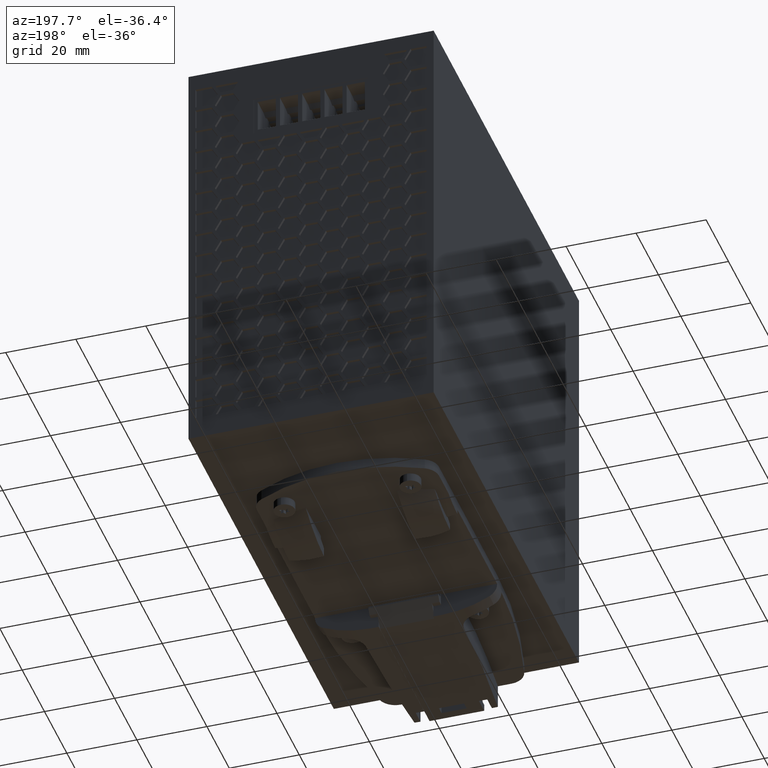
[diagram: clean part render]
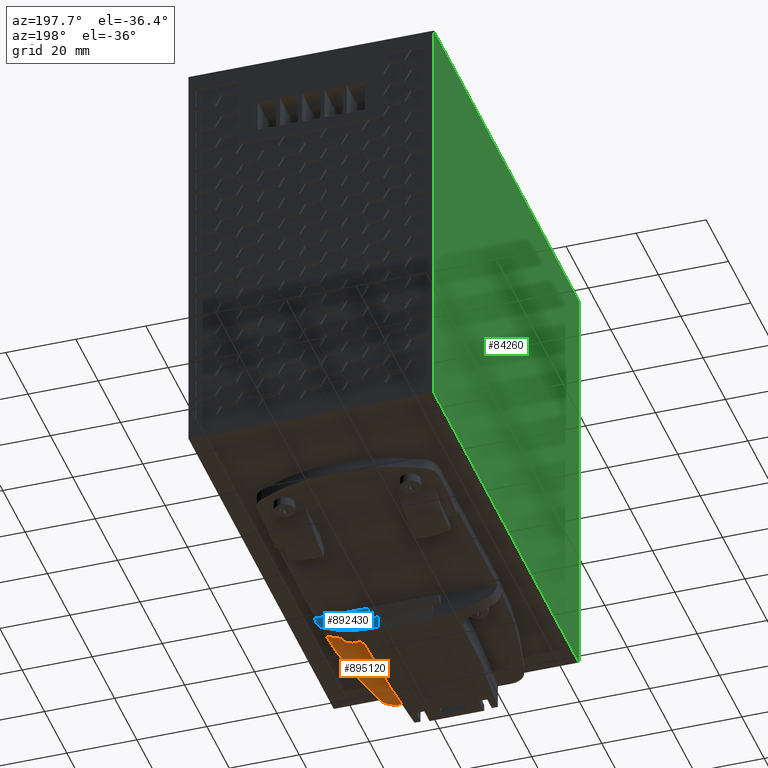
[diagram: same view with three faces highlighted in distinct colors, each labeled with its STEP entity id]
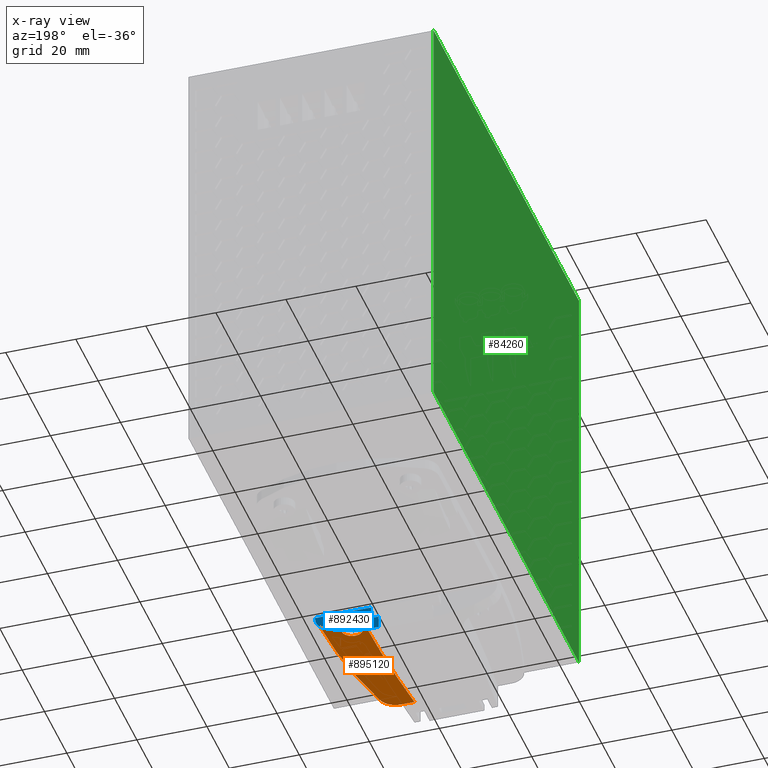
[diagram: x-ray of the same camera — body ghosted, the three highlighted faces saturated]
A machine part, auxiliary view with three faces highlighted in distinct colors.
The next image is the same camera in x-ray (body ghosted, the three faces saturated) — at least one of them is partly hidden behind the body in this view.
Their STEP definitions:

[orange] entity #895120 — the highlighted planar face has unit normal (-0, 0, -1).
#210860=CARTESIAN_POINT('',(40.775,-2.90000000000834,41.3012793438114));
#210870=DIRECTION('',(-0.,-1.,-0.));
#210880=DIRECTION('',(-1.,0.,0.));
#210890=AXIS2_PLACEMENT_3D('',#210860,#210870,#210880);
#210900=PLANE('',#210890);
#891690=CARTESIAN_POINT('',(60.9499921850577,-2.90000000000834,
88.0968498908015));
#891700=VERTEX_POINT('',#891690);
#891730=CARTESIAN_POINT('',(-99.,-2.90000000000834,84.0968498908014));
#891740=DIRECTION('',(0.,-1.,0.));
#891750=DIRECTION('',(0.,0.,1.));
#891760=AXIS2_PLACEMENT_3D('',#891730,#891740,#891750);
#891770=CIRCLE('',#891760,160.);
#891780=CARTESIAN_POINT('',(55.6217060011348,-2.90000000000834,
125.232333761769));
#891790=VERTEX_POINT('',#891780);
#891800=EDGE_CURVE('',#891700,#891790,#891770,.T.);
#893700=CARTESIAN_POINT('',(46.9167256523205,-2.90000000000834,
128.946849890801));
#893710=VERTEX_POINT('',#893700);
#893740=CARTESIAN_POINT('',(-352.5,-2.90000000000834,88.0992150856014));
#893750=DIRECTION('',(0.,-1.,0.));
#893760=DIRECTION('',(0.,0.,-1.));
#893770=AXIS2_PLACEMENT_3D('',#893740,#893750,#893760);
#893780=CIRCLE('',#893770,401.5);
#893790=CARTESIAN_POINT('',(48.9804885015026,-2.90000000000834,
92.0574157620202));
#893800=VERTEX_POINT('',#893790);
#893810=EDGE_CURVE('',#893800,#893710,#893780,.T.);
#894040=CARTESIAN_POINT('',(-1.,-2.90000000000834,128.946849890801));
#894050=DIRECTION('',(1.,0.,0.));
#894060=VECTOR('',#894050,1.);
#894070=LINE('',#894040,#894060);
#894080=CARTESIAN_POINT('',(50.7897776885993,-2.90000000000834,
128.946849890801));
#894090=VERTEX_POINT('',#894080);
#894100=EDGE_CURVE('',#893710,#894090,#894070,.T.);
#894700=CARTESIAN_POINT('',(53.,-2.90000000000834,92.0968498908015));
#894710=DIRECTION('',(0.,-1.,0.));
#894720=DIRECTION('',(0.,0.,1.));
#894730=AXIS2_PLACEMENT_3D('',#894700,#894710,#894720);
#894740=CIRCLE('',#894730,3.);
#894750=CARTESIAN_POINT('',(53.,-2.90000000000834,95.0968498908015));
#894760=VERTEX_POINT('',#894750);
#894770=CARTESIAN_POINT('',(53.,-2.90000000000834,89.0968498908015));
#894780=VERTEX_POINT('',#894770);
#894790=EDGE_CURVE('',#894760,#894780,#894740,.T.);
#894800=ORIENTED_EDGE('',*,*,#894790,.F.);
#894810=EDGE_CURVE('',#894780,#894760,#894740,.T.);
#894820=ORIENTED_EDGE('',*,*,#894810,.F.);
#894830=EDGE_LOOP('',(#894820,#894800));
#894840=FACE_BOUND('',#894830,.T.);
#894850=CARTESIAN_POINT('',(-1.,-2.90000000000834,88.0968498908014));
#894860=DIRECTION('',(1.,0.,0.));
#894870=VECTOR('',#894860,1.);
#894880=LINE('',#894850,#894870);
#894890=CARTESIAN_POINT('',(52.9802941154653,-2.90000000000834,
88.0968498908015));
#894900=VERTEX_POINT('',#894890);
#894910=EDGE_CURVE('',#894900,#891700,#894880,.T.);
#894920=ORIENTED_EDGE('',*,*,#894910,.T.);
#894930=CARTESIAN_POINT('',(52.9802941154653,-2.90000000000834,
92.0968498908015));
#894940=DIRECTION('',(0.,-1.,0.));
#894950=DIRECTION('',(-1.,0.,0.));
#894960=AXIS2_PLACEMENT_3D('',#894930,#894940,#894950);
#894970=CIRCLE('',#894960,4.);
#894980=EDGE_CURVE('',#893800,#894900,#894970,.T.);
#894990=ORIENTED_EDGE('',*,*,#894980,.T.);
#895000=ORIENTED_EDGE('',*,*,#893810,.F.);
#895010=ORIENTED_EDGE('',*,*,#894100,.F.);
#895020=CARTESIAN_POINT('',(50.7897776885993,-2.90000000000834,
123.946849890801));
#895030=DIRECTION('',(0.,-1.,0.));
#895040=DIRECTION('',(-1.,0.,0.));
#895050=AXIS2_PLACEMENT_3D('',#895020,#895030,#895040);
#895060=CIRCLE('',#895050,5.);
#895070=EDGE_CURVE('',#891790,#894090,#895060,.T.);
#895080=ORIENTED_EDGE('',*,*,#895070,.T.);
#895090=ORIENTED_EDGE('',*,*,#891800,.T.);
#895100=EDGE_LOOP('',(#895090,#895080,#895010,#895000,#894990,#894920));
#895110=FACE_OUTER_BOUND('',#895100,.T.);
#895120=ADVANCED_FACE('',(#894840,#895110),#210900,.T.);

[blue] entity #892430 — the highlighted planar face has unit normal (0, 1, 0).
#100370=CARTESIAN_POINT('',(42.8,-8.29955848486361,84.0968498908014));
#100380=VERTEX_POINT('',#100370);
#100630=CARTESIAN_POINT('',(42.8,-9.90000000000832,84.0968498908014));
#100640=VERTEX_POINT('',#100630);
#100670=CARTESIAN_POINT('',(42.8,0.,84.0968498908014));
#100680=DIRECTION('',(0.,-1.,0.));
#100690=VECTOR('',#100680,1.);
#100700=LINE('',#100670,#100690);
#100710=EDGE_CURVE('',#100380,#100640,#100700,.T.);
#102560=CARTESIAN_POINT('',(45.0743344320918,-5.63141203590117,
153.685542635742));
#102570=CARTESIAN_POINT('',(46.3403170509005,-5.81022095574977,
151.064490335249));
#102580=CARTESIAN_POINT('',(47.5349063773054,-5.88919030929573,
148.408997652081));
#102590=CARTESIAN_POINT('',(49.7812655642816,-5.90871513972316,
143.025761285719));
#102600=CARTESIAN_POINT('',(50.8311236396666,-5.84918758200406,
140.30319972954));
#102610=CARTESIAN_POINT('',(52.7797530273598,-5.64069773896304,
134.805789424298));
#102620=CARTESIAN_POINT('',(53.6788313705026,-5.49180964051441,
132.031037372716));
#102630=CARTESIAN_POINT('',(55.3230454030464,-5.1471949978407,
126.439169313841));
#102640=CARTESIAN_POINT('',(56.0684891846169,-4.95154773439343,
123.622319764749));
#102650=CARTESIAN_POINT('',(57.4045059206593,-4.55089688054524,
117.951032081244));
#102660=CARTESIAN_POINT('',(57.9952523408382,-4.34593656536102,
115.096834746713));
#102670=CARTESIAN_POINT('',(59.0200188429178,-3.95990376235308,
109.358565538732));
#102680=CARTESIAN_POINT('',(59.4542631269413,-3.77886646460761,
106.474625861697));
#102690=CARTESIAN_POINT('',(60.1644613531749,-3.46832319127134,
100.685031854141));
#102700=CARTESIAN_POINT('',(60.4406359906012,-3.33883681320644,
97.7793020005343));
#102710=CARTESIAN_POINT('',(60.8335534900347,-3.15100158887521,
91.9548698312182));
#102720=CARTESIAN_POINT('',(60.9504156566177,-3.09267606918677,
89.0358743320794));
#102730=CARTESIAN_POINT('',(61.0241073365893,-3.05613011638496,
83.1957253305814));
#102740=CARTESIAN_POINT('',(60.9809610615792,-3.07791471047654,
80.2741659342253));
#102750=CARTESIAN_POINT('',(60.7350049894961,-3.19825714557351,
74.4398805160199));
#102760=CARTESIAN_POINT('',(60.5321174339837,-3.29679874051204,
71.5267932554081));
#102770=CARTESIAN_POINT('',(59.9678087948162,-3.55566430290948,
65.7186108492733));
#102780=CARTESIAN_POINT('',(59.6061944872049,-3.71597292475955,
62.8233378908338));
#102790=CARTESIAN_POINT('',(58.7259781473381,-4.07407498123776,
57.059322008785));
#102800=CARTESIAN_POINT('',(58.2071672462729,-4.27183537051772,
54.1906217573492));
#102810=CARTESIAN_POINT('',(57.0138392134201,-4.6741059370581,
48.485132760337));
#102820=CARTESIAN_POINT('',(56.3390288249114,-4.87857802340562,
45.648573309341));
#102830=CARTESIAN_POINT('',(54.8351489387498,-5.25861088341863,
40.0143574167312));
#102840=CARTESIAN_POINT('',(54.0058024706178,-5.43410966095024,
37.2169837922763));
#102850=CARTESIAN_POINT('',(52.1949996124809,-5.7159551829002,
31.6697573241212));
#102860=CARTESIAN_POINT('',(51.2132705094097,-5.82223272368197,
28.9200952882202));
#102870=CARTESIAN_POINT('',(49.1004092697987,-5.91974325527886,
23.4765902000194));
#102880=CARTESIAN_POINT('',(47.9708954697022,-5.91093983943139,
20.7875112815937));
#102890=CARTESIAN_POINT('',(46.7676798052259,-5.81694613810834,
18.1288006229843));
#102900=CARTESIAN_POINT('',(45.0034699793578,-8.21744600717199,
153.832258265248));
#102910=CARTESIAN_POINT('',(46.2950925983412,-8.31679866533718,
151.164926902598));
#102920=CARTESIAN_POINT('',(47.516235746546,-8.32004045281116,
148.453352024536));
#102930=CARTESIAN_POINT('',(49.7936517843138,-8.19501985077911,
142.996456210143));
#102940=CARTESIAN_POINT('',(50.8517896871656,-8.06740390652162,
140.249203092171));
#102950=CARTESIAN_POINT('',(52.8118464113804,-7.73189248254208,
134.710940442499));
#102960=CARTESIAN_POINT('',(53.7124372901638,-7.52423516171174,
131.924496512315));
#102970=CARTESIAN_POINT('',(55.357117790352,-7.07156634977002,
126.315553081318));
#102980=CARTESIAN_POINT('',(56.1005360882836,-6.82683569496765,
123.496542808153));
#102990=CARTESIAN_POINT('',(57.4316808442246,-6.33767997892288,
117.825430271366));
#103000=CARTESIAN_POINT('',(58.0189840520743,-6.09348604870767,
114.976014555934));
#103010=CARTESIAN_POINT('',(59.0372091822577,-5.63895986641122,
109.250260084257));
#103020=CARTESIAN_POINT('',(59.467990236674,-5.42881034623395,
106.376024483593));
#103030=CARTESIAN_POINT('',(60.1723590084719,-5.07037643652679,
100.607369151806));
#103040=CARTESIAN_POINT('',(60.4459500824798,-4.92221731385293,
97.7145798988861));
#103050=CARTESIAN_POINT('',(60.8352160214198,-4.70770099005859,
91.9161903156732));
#103060=CARTESIAN_POINT('',(60.9508998105226,-4.64143032614018,
89.0118765454444));
#103070=CARTESIAN_POINT('',(61.0238740414092,-4.59986366251831,
83.1998760511639));
#103080=CARTESIAN_POINT('',(60.9811686169462,-4.62458491930727,
80.2933214368585));
#103090=CARTESIAN_POINT('',(60.7375672391347,-4.76166363824074,
74.4864106185842));
#103100=CARTESIAN_POINT('',(60.5366612786015,-4.8739644741894,
71.5872458188893));
#103110=CARTESIAN_POINT('',(59.9773145379204,-5.17101899970211,
65.8027431413215));
#103120=CARTESIAN_POINT('',(59.6188454366923,-5.35567144490322,
62.9188618036718));
#103130=CARTESIAN_POINT('',(58.7450767100592,-5.77285238667653,
57.1716860467342));
#103140=CARTESIAN_POINT('',(58.2298580145502,-6.00521798016283,
54.3102632398862));
#103150=CARTESIAN_POINT('',(57.0425388833359,-6.48685946265351,
48.6111730271082));
#103160=CARTESIAN_POINT('',(56.3706222600035,-6.73593269849817,
45.7759338830616));
#103170=CARTESIAN_POINT('',(54.8692943428021,-7.21515102740202,
40.1332684804084));
#103180=CARTESIAN_POINT('',(54.0403866612251,-7.44503656069287,
37.328951513123));
#103190=CARTESIAN_POINT('',(52.2240477655855,-7.84538627775047,
31.7527176808066));
#103200=CARTESIAN_POINT('',(51.2376373809503,-8.01558489572414,
28.9848277466312));
#103210=CARTESIAN_POINT('',(49.1040443126305,-8.25003036723689,
23.4840029168666));
#103220=CARTESIAN_POINT('',(47.9554076219244,-8.31387319746373,
20.7496729560584));
#103230=CARTESIAN_POINT('',(46.7339101873522,-8.29635511489177,
18.0541808805486));
#103240=CARTESIAN_POINT('',(43.2035873896171,-9.92393817897704,
153.082307548277));
#103250=CARTESIAN_POINT('',(44.5842976891,-10.0113789824054,
150.460027664721));
#103260=CARTESIAN_POINT('',(45.8922298643975,-9.9991039045302,
147.779130671091));
#103270=CARTESIAN_POINT('',(48.3222968578352,-9.8375195271602,
142.391322774242));
#103280=CARTESIAN_POINT('',(49.4482761612797,-9.68913103043523,
139.679154530877));
#103290=CARTESIAN_POINT('',(51.5322263878413,-9.31021948625148,
134.205463946573));
#103300=CARTESIAN_POINT('',(52.4877314620516,-9.08004724593209,
131.451511255457));
#103310=CARTESIAN_POINT('',(54.2314358591975,-8.58275127366069,
125.903580340888));
#103320=CARTESIAN_POINT('',(55.0183178446912,-8.31604465662143,
123.115181483453));
#103330=CARTESIAN_POINT('',(56.4265397471949,-7.78515749752577,
117.502280555571));
#103340=CARTESIAN_POINT('',(57.047022247468,-7.52134237852186,
114.68222229918));
#103350=CARTESIAN_POINT('',(58.1224665499839,-7.03132719886205,
109.012515315735));
#103360=CARTESIAN_POINT('',(58.576942407001,-6.8054459697248,
106.166870991924));
#103370=CARTESIAN_POINT('',(59.3200599108907,-6.42053635290652,
100.452644244663));
#103380=CARTESIAN_POINT('',(59.6084163044067,-6.26176500813947,
97.588053720901));
#103390=CARTESIAN_POINT('',(60.0188178164735,-6.03190163895083,
91.843028204985));
#103400=CARTESIAN_POINT('',(60.140677832227,-5.96099277594019,
88.9667670567223));
#103410=CARTESIAN_POINT('',(60.2175928723871,-5.91649021335756,
83.2076675062341));
#103420=CARTESIAN_POINT('',(60.1726121351651,-5.94293433012134,
80.3291445361685));
#103430=CARTESIAN_POINT('',(59.9158294140849,-6.08974056153626,
74.5753068989855));
#103440=CARTESIAN_POINT('',(59.704146088114,-6.20998056252491,
71.7042520341726));
#103450=CARTESIAN_POINT('',(59.1142438693532,-6.52860068400947,
65.9736190943138));
#103460=CARTESIAN_POINT('',(58.7362485878485,-6.72675919960653,
63.1181118279072));
#103470=CARTESIAN_POINT('',(57.8139084457517,-7.1755843951522,
57.4261724654756));
#103480=CARTESIAN_POINT('',(57.2699663368529,-7.42595103255375,
54.5936992779097));
#103490=CARTESIAN_POINT('',(56.0149143919223,-7.94683886372339,
48.9517653764718));
#103500=CARTESIAN_POINT('',(55.3043669038807,-8.21702424773899,
46.1465116712061));
#103510=CARTESIAN_POINT('',(53.7143584692015,-8.74002696797915,
40.5635261374699));
#103520=CARTESIAN_POINT('',(52.8359249536383,-8.99244950111748,
37.790781255969));
#103530=CARTESIAN_POINT('',(50.9074505707401,-9.43737474614217,
32.2774307920853));
#103540=CARTESIAN_POINT('',(49.859302760305,-9.62948010757479,
29.5433604023104));
#103550=CARTESIAN_POINT('',(47.5866814686524,-9.90439400033832,
24.1095128610095));
#103560=CARTESIAN_POINT('',(46.3590396032154,-9.98668044829528,
21.4052352639135));
#103570=CARTESIAN_POINT('',(45.0556693252184,-9.98457444947311,
18.7524648157904));
#103580=CARTESIAN_POINT('',(40.8990108514879,-9.59009081065391,
151.945825317119));
#103590=CARTESIAN_POINT('',(42.3181022493961,-9.79566433826876,
149.399520424151));
#103600=CARTESIAN_POINT('',(43.666822041778,-9.88752431808412,
146.801884005279));
#103610=CARTESIAN_POINT('',(46.1946396568927,-9.91005888370147,
141.551850460705));
#103620=CARTESIAN_POINT('',(47.3752156514401,-9.84139037513014,
138.898488563973));
#103630=CARTESIAN_POINT('',(49.5677895136438,-9.60078502990056,
133.537619128403));
#103640=CARTESIAN_POINT('',(50.5789589249142,-9.42903498114135,
130.833009803579));
#103650=CARTESIAN_POINT('',(52.4289214312142,-9.03135503883061,
125.380284932143));
#103660=CARTESIAN_POINT('',(53.2673537943248,-8.80565696199728,
122.634481577113));
#103670=CARTESIAN_POINT('',(54.7705348152967,-8.34331762893006,
117.104379388803));
#103680=CARTESIAN_POINT('',(55.4349697550481,-8.10687837483274,
114.322193001951));
#103690=CARTESIAN_POINT('',(56.5879794373211,-7.66139897261212,
108.726665353638));
#103700=CARTESIAN_POINT('',(57.0763630638226,-7.45256853154408,
105.915658849323));
#103710=CARTESIAN_POINT('',(57.8754711085597,-7.09418880788098,
100.269850614199));
#103720=CARTESIAN_POINT('',(58.1860528757684,-6.94483486443242,
97.4378474529179));
#103730=CARTESIAN_POINT('',(58.6281794857985,-6.72805561662587,
91.757813026171));
#103740=CARTESIAN_POINT('',(58.7595923400307,-6.66078510984185,
88.9130779430375));
#103750=CARTESIAN_POINT('',(58.8425152566447,-6.6186066434375,
83.2175743212216));
#103760=CARTESIAN_POINT('',(58.7939974656244,-6.6437318569439,
80.3703838184596));
#103770=CARTESIAN_POINT('',(58.517233557633,-6.78262029216294,
74.680653657283));
#103780=CARTESIAN_POINT('',(58.2890771878211,-6.89627779343169,
71.8415839807941));
#103790=CARTESIAN_POINT('',(57.6541089754268,-7.19502575345586,
66.1775268474958));
#103800=CARTESIAN_POINT('',(57.2474251133938,-7.37993884142022,
63.3555826083705));
#103810=CARTESIAN_POINT('',(56.2570382263303,-7.79319340157857,
57.7348526929263));
#103820=CARTESIAN_POINT('',(55.6735243993099,-8.02132200948129,
54.938594997836));
#103830=CARTESIAN_POINT('',(54.3308769337504,-8.48553340240302,
49.3751074683188));
#103840=CARTESIAN_POINT('',(53.5718854762722,-8.72141196481627,
46.6100835934925));
#103850=CARTESIAN_POINT('',(51.8798335441993,-9.15995990113671,
41.1161157277117));
#103860=CARTESIAN_POINT('',(50.9470552223936,-9.36241142351404,
38.3893596451924));
#103870=CARTESIAN_POINT('',(48.9096160956997,-9.68766343720392,
32.9800547577373));
#103880=CARTESIAN_POINT('',(47.8055663562958,-9.81025657927899,
30.3000777646897));
#103890=CARTESIAN_POINT('',(45.4280919407253,-9.92279265960315,
24.9915315505868));
#103900=CARTESIAN_POINT('',(44.1532776084402,-9.91227320726757,
22.3618866909415));
#103910=CARTESIAN_POINT('',(42.8040243962637,-9.80416862089295,
19.7780018546798));
#103920=(BOUNDED_SURFACE() B_SPLINE_SURFACE(3,3,((#102560,#102900,
#103240,#103580),(#102570,#102910,#103250,#103590),(#102580,#102920,
#103260,#103600),(#102590,#102930,#103270,#103610),(#102600,#102940,
#103280,#103620),(#102610,#102950,#103290,#103630),(#102620,#102960,
#103300,#103640),(#102630,#102970,#103310,#103650),(#102640,#102980,
#103320,#103660),(#102650,#102990,#103330,#103670),(#102660,#103000,
#103340,#103680),(#102670,#103010,#103350,#103690),(#102680,#103020,
#103360,#103700),(#102690,#103030,#103370,#103710),(#102700,#103040,
#103380,#103720),(#102710,#103050,#103390,#103730),(#102720,#103060,
#103400,#103740),(#102730,#103070,#103410,#103750),(#102740,#103080,
#103420,#103760),(#102750,#103090,#103430,#103770),(#102760,#103100,
#103440,#103780),(#102770,#103110,#103450,#103790),(#102780,#103120,
#103460,#103800),(#102790,#103130,#103470,#103810),(#102800,#103140,
#103480,#103820),(#102810,#103150,#103490,#103830),(#102820,#103160,
#103500,#103840),(#102830,#103170,#103510,#103850),(#102840,#103180,
#103520,#103860),(#102850,#103190,#103530,#103870),(#102860,#103200,
#103540,#103880),(#102870,#103210,#103550,#103890),(#102880,#103220,
#103560,#103900),(#102890,#103230,#103570,#103910)),.UNSPECIFIED.,.F.,
.F.,.F.) B_SPLINE_SURFACE_WITH_KNOTS((4,2,2,2,2,2,2,2,2,2,2,2,2,2,2,2,4)
,(4,4),(0.,8.75651680268565,17.4875641845306,26.2035355343563,
34.9002750200123,43.5847356551744,52.2550551758772,60.9127331774731,
69.5640103292074,78.2140312931541,86.8681432524264,95.5329794214099,
104.210493337567,112.906675508759,121.620952832175,130.350859256562,
139.1044688017),(0.,1.),.UNSPECIFIED.) GEOMETRIC_REPRESENTATION_ITEM() 
RATIONAL_B_SPLINE_SURFACE(((1.,0.773258508527748,0.773258508527748,1.),(
1.,0.783760619791181,0.783760619791181,1.),(1.,0.793626750683958,
0.793626750683958,1.),(1.,0.811955906367221,0.811955906367221,1.),(1.,
0.820479325710964,0.820479325710964,1.),(1.,0.836242696070561,
0.836242696070561,1.),(1.,0.843473355596504,0.843473355596504,1.),(1.,
0.8566610091823,0.8566610091823,1.),(1.,0.862613578111954,
0.862613578111954,1.),(1.,0.873261776843689,0.873261776843689,1.),(1.,
0.877954096316392,0.877954096316392,1.),(1.,0.88608445337847,
0.88608445337847,1.),(1.,0.889520495696341,0.889520495696341,1.),(1.,
0.895137648669848,0.895137648669848,1.),(1.,0.897317361590637,
0.897317361590637,1.),(1.,0.900419272932765,0.900419272932765,1.),(1.,
0.901340332551382,0.901340332551382,1.),(1.,0.901921654226187,
0.901921654226187,1.),(1.,0.901581680778176,0.901581680778176,1.),(1.,
0.899640899644125,0.899640899644125,1.),(1.,0.898040855054247,
0.898040855054247,1.),(1.,0.893582054031871,0.893582054031871,1.),(1.,
0.890724503635574,0.890724503635574,1.),(1.,0.883752125924418,
0.883752125924418,1.),(1.,0.879639149288061,0.879639149288061,1.),(1.,
0.870150009662685,0.870150009662685,1.),(1.,0.864775701425908,
0.864775701425908,1.),(1.,0.852751569781216,0.852751569781216,1.),(1.,
0.846105197453484,0.846105197453484,1.),(1.,0.831518718118881,
0.831518718118881,1.),(1.,0.823585545492992,0.823585545492992,1.),(1.,
0.806436070983443,0.806436070983443,1.),(1.,0.797170412865134,
0.797170412865134,1.),(1.,0.787263913937934,0.787263913937934,1.))) 
REPRESENTATION_ITEM('') SURFACE());
#103930=CARTESIAN_POINT('',(38.7,-3.30000000000832,84.0968498908014));
#103940=DIRECTION('',(0.,0.,-1.));
#103950=DIRECTION('',(0.,1.,0.));
#103960=AXIS2_PLACEMENT_3D('',#103930,#103940,#103950);
#103970=PLANE('',#103960);
#103980=CARTESIAN_POINT('',(60.9999939336886,-3.06813087505524,
84.0968498908014));
#103990=CARTESIAN_POINT('',(60.9999977624699,-3.4330217734481,
84.0968498908014));
#104000=CARTESIAN_POINT('',(60.9493752538129,-3.80039969006405,
84.0968498908014));
#104010=CARTESIAN_POINT('',(60.8502249561405,-4.15246511236609,
84.0968498908014));
#104020=CARTESIAN_POINT('',(60.7514821326585,-4.50308366485261,
84.0968498908014));
#104030=CARTESIAN_POINT('',(60.6034096451931,-4.84330640344105,
84.0968498908014));
#104040=CARTESIAN_POINT('',(60.410931775225,-5.15752604461875,
84.0968498908014));
#104050=CARTESIAN_POINT('',(60.2183862608959,-5.47185611504653,
84.0968498908014));
#104060=CARTESIAN_POINT('',(59.9858469004721,-5.75509648488833,
84.0968498908014));
#104070=CARTESIAN_POINT('',(59.7160727141585,-6.00462087305746,
84.0968498908014));
#104080=CARTESIAN_POINT('',(59.4459151733822,-6.25449984032511,
84.0968498908014));
#104090=CARTESIAN_POINT('',(59.1405048183837,-6.46686394841265,
84.0968498908014));
#104100=CARTESIAN_POINT('',(58.8153857197922,-6.63245468781243,
84.0968498908014));
#104110=B_SPLINE_CURVE_WITH_KNOTS('',3,(#103980,#103990,#104000,#104010,
#104020,#104030,#104040,#104050,#104060,#104070,#104080,#104090,#104100)
,.UNSPECIFIED.,.F.,.F.,(4,3,3,3,4),(0.,1.09807335643546,2.1984104936386,
3.29749181415353,4.39888048177278),.UNSPECIFIED.);
#104120=SURFACE_CURVE('',#104110,(#103920,#103970),.CURVE_3D.);
#104130=CARTESIAN_POINT('',(60.9999939336886,-3.06813087505524,
84.0968498908014));
#104140=VERTEX_POINT('',#104130);
#104150=CARTESIAN_POINT('',(58.8153857197922,-6.63245468781243,
84.0968498908014));
#104160=VERTEX_POINT('',#104150);
#104170=EDGE_CURVE('',#104140,#104160,#104120,.T.);
#106780=CARTESIAN_POINT('',(45.,-0.39999999999999,84.0968498908014));
#106790=DIRECTION('',(0.,-1.,0.));
#106800=VECTOR('',#106790,1.);
#106810=LINE('',#106780,#106800);
#106820=CARTESIAN_POINT('',(45.,-2.90000000000834,84.0968498908014));
#106830=VERTEX_POINT('',#106820);
#106840=CARTESIAN_POINT('',(45.,-6.45000000000833,84.0968498908014));
#106850=VERTEX_POINT('',#106840);
#106860=EDGE_CURVE('',#106830,#106850,#106810,.T.);
#857690=CARTESIAN_POINT('',(-1.,-2.90000000000834,84.0968498908014));
#857700=DIRECTION('',(1.,0.,0.));
#857710=VECTOR('',#857700,1.);
#857720=LINE('',#857690,#857710);
#857730=CARTESIAN_POINT('',(61.,-2.90000000000834,84.0968498908014));
#857740=VERTEX_POINT('',#857730);
#857750=EDGE_CURVE('',#106830,#857740,#857720,.T.);
#891900=CARTESIAN_POINT('',(61.,1.10000239999169,84.0968498908014));
#891910=DIRECTION('',(0.,-1.,0.));
#891920=VECTOR('',#891910,1.);
#891930=LINE('',#891900,#891920);
#891940=EDGE_CURVE('',#857740,#104140,#891930,.T.);
#892070=CARTESIAN_POINT('',(63.7,-9.90000000000832,84.0968498908014));
#892080=DIRECTION('',(1.,0.,0.));
#892090=VECTOR('',#892080,1.);
#892100=LINE('',#892070,#892090);
#892110=CARTESIAN_POINT('',(45.2,-9.90000000000832,84.0968498908014));
#892120=VERTEX_POINT('',#892110);
#892130=EDGE_CURVE('',#100640,#892120,#892100,.T.);
#892140=ORIENTED_EDGE('',*,*,#892130,.F.);
#892150=CARTESIAN_POINT('',(45.2,20.0999999999917,84.0968498908014));
#892160=DIRECTION('',(0.,0.,1.));
#892170=DIRECTION('',(1.,0.,0.));
#892180=AXIS2_PLACEMENT_3D('',#892150,#892160,#892170);
#892190=CIRCLE('',#892180,30.);
#892200=EDGE_CURVE('',#892120,#104160,#892190,.T.);
#892210=ORIENTED_EDGE('',*,*,#892200,.F.);
#892220=ORIENTED_EDGE('',*,*,#104170,.T.);
#892230=ORIENTED_EDGE('',*,*,#891940,.T.);
#892240=ORIENTED_EDGE('',*,*,#857750,.T.);
#892250=ORIENTED_EDGE('',*,*,#106860,.F.);
#892260=CARTESIAN_POINT('',(-1.,-6.45000000000833,84.0968498908014));
#892270=DIRECTION('',(1.,0.,0.));
#892280=VECTOR('',#892270,1.);
#892290=LINE('',#892260,#892280);
#892300=CARTESIAN_POINT('',(42.8,-6.45000000000833,84.0968498908014));
#892310=VERTEX_POINT('',#892300);
#892320=EDGE_CURVE('',#892310,#106850,#892290,.T.);
#892330=ORIENTED_EDGE('',*,*,#892320,.T.);
#892340=CARTESIAN_POINT('',(42.8,0.,84.0968498908014));
#892350=DIRECTION('',(0.,-1.,0.));
#892360=VECTOR('',#892350,1.);
#892370=LINE('',#892340,#892360);
#892380=EDGE_CURVE('',#892310,#100380,#892370,.T.);
#892390=ORIENTED_EDGE('',*,*,#892380,.F.);
#892400=ORIENTED_EDGE('',*,*,#100710,.F.);
#892410=EDGE_LOOP('',(#892400,#892390,#892330,#892250,#892240,#892230,
#892220,#892210,#892140));
#892420=FACE_OUTER_BOUND('',#892410,.T.);
#892430=ADVANCED_FACE('',(#892420),#103970,.T.);

[green] entity #84260 — the highlighted planar face has unit normal (-1, 0, 0).
#9170=CARTESIAN_POINT('',(0.,0.0999999999916668,-0.853150109198594));
#9180=VERTEX_POINT('',#9170);
#9210=CARTESIAN_POINT('',(0.,0.0999999999916668,0.));
#9220=DIRECTION('',(0.,0.,1.));
#9230=VECTOR('',#9220,1.);
#9240=LINE('',#9210,#9230);
#9250=CARTESIAN_POINT('',(0.,0.0999999999916668,129.146849890801));
#9260=VERTEX_POINT('',#9250);
#9270=EDGE_CURVE('',#9180,#9260,#9240,.T.);
#83960=CARTESIAN_POINT('',(0.,121.299999999992,-0.0531501091985842));
#83970=DIRECTION('',(-1.,0.,0.));
#83980=DIRECTION('',(0.,-1.,0.));
#83990=AXIS2_PLACEMENT_3D('',#83960,#83970,#83980);
#84000=PLANE('',#83990);
#84010=ORIENTED_EDGE('',*,*,#9270,.T.);
#84020=CARTESIAN_POINT('',(0.,0.,-0.853150109198594));
#84030=DIRECTION('',(0.,-1.,0.));
#84040=VECTOR('',#84030,1.);
#84050=LINE('',#84020,#84040);
#84060=CARTESIAN_POINT('',(0.,122.349999999992,-0.853150109198594));
#84070=VERTEX_POINT('',#84060);
#84080=EDGE_CURVE('',#84070,#9180,#84050,.T.);
#84090=ORIENTED_EDGE('',*,*,#84080,.T.);
#84100=CARTESIAN_POINT('',(0.,122.349999999992,0.));
#84110=DIRECTION('',(0.,0.,-1.));
#84120=VECTOR('',#84110,1.);
#84130=LINE('',#84100,#84120);
#84140=CARTESIAN_POINT('',(0.,122.349999999992,129.146849890801));
#84150=VERTEX_POINT('',#84140);
#84160=EDGE_CURVE('',#84150,#84070,#84130,.T.);
#84170=ORIENTED_EDGE('',*,*,#84160,.T.);
#84180=CARTESIAN_POINT('',(0.,-8.485656621815E-12,129.146849890801));
#84190=DIRECTION('',(0.,-1.,0.));
#84200=VECTOR('',#84190,1.);
#84210=LINE('',#84180,#84200);
#84220=EDGE_CURVE('',#84150,#9260,#84210,.T.);
#84230=ORIENTED_EDGE('',*,*,#84220,.F.);
#84240=EDGE_LOOP('',(#84230,#84170,#84090,#84010));
#84250=FACE_OUTER_BOUND('',#84240,.T.);
#84260=ADVANCED_FACE('',(#84250),#84000,.T.);